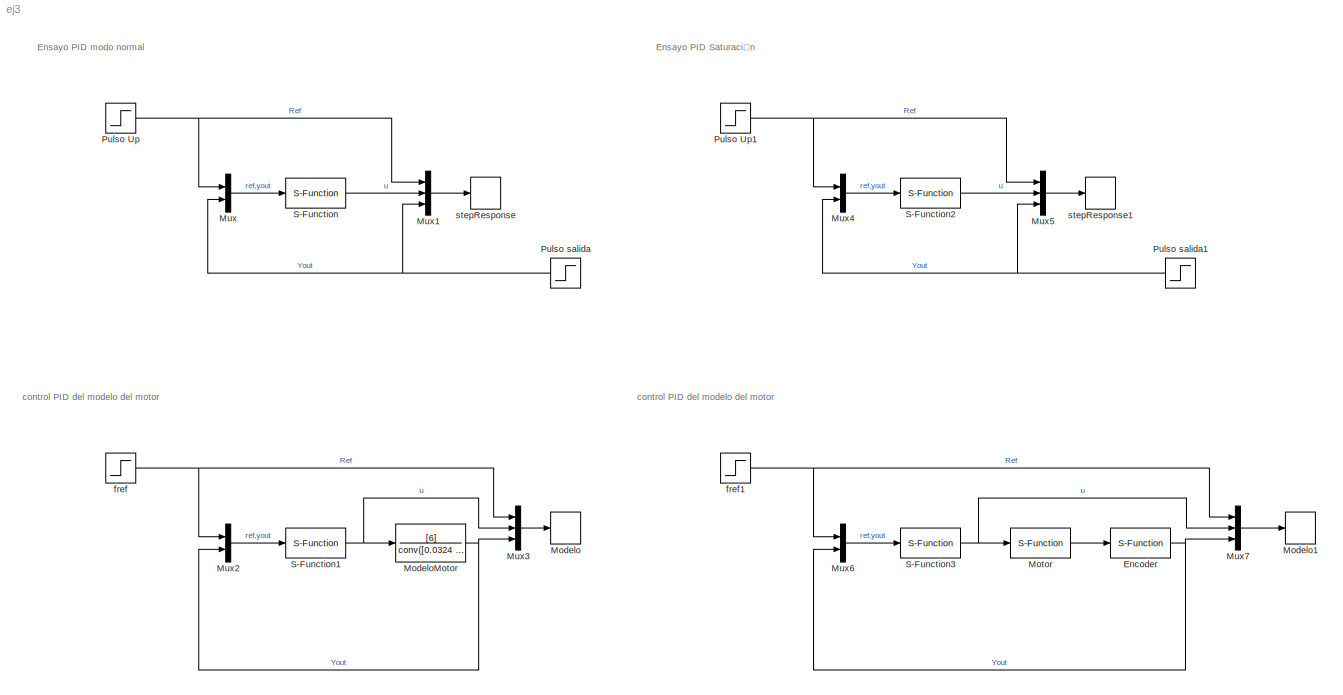
MODEL ej3
KIND model
BLOCK [S-Function] Encoder
  FunctionName = encoder
  Parameters = 1E-5 10
  Ports = [1, 1]
  SID = 36
BLOCK [TimeScope] Modelo
  NumInputPorts = 1
  Ports = [1]
  SID = 20
  ScopeSpecificationString = Simulink.scopes.TimeScopeBlockCfg('CurrentConfiguration', extmgr.ConfigurationSet(extmgr.Configuration('Core','General UI',true,'FigureColor',[0.941176470588235 0.941176470588235 0.941176470588235]),extmgr.Configuration('Core','Source UI',true),extmgr.Configuration('Sources','WiredSimulink',true,'DataLoggingLimitDataPoints',true,'DataLoggingVariableName','ScopeData1','DataLoggingDecimation','1','D...<+3394ch>
BLOCK [TimeScope] Modelo1
  NumInputPorts = 1
  Ports = [1]
  SID = 28
  ScopeSpecificationString = Simulink.scopes.TimeScopeBlockCfg('CurrentConfiguration', extmgr.ConfigurationSet(extmgr.Configuration('Core','General UI',true,'FigureColor',[0.941176470588235 0.941176470588235 0.941176470588235]),extmgr.Configuration('Core','Source UI',true),extmgr.Configuration('Sources','WiredSimulink',true,'DataLoggingVariableName','ScopeData3','DataLoggingDecimation','1','DataLoggingDecimateData',true,'Data...<+3368ch>
BLOCK [TransferFcn] ModeloMotor
  Denominator = conv([0.0324 1],[0.0036 1])
  Numerator = [6]
  SID = 18
BLOCK [S-Function] Motor
  FunctionName = dcmotor_qenc
  Parameters = 10
  Ports = [1, 1]
  SID = 35
BLOCK [Mux] Mux
  DisplayOption = bar
  Inputs = 2
  Ports = [2, 1]
  SID = 1
BLOCK [Mux] Mux1
  DisplayOption = bar
  Inputs = 3
  Ports = [3, 1]
  SID = 2
BLOCK [Mux] Mux2
  DisplayOption = bar
  Inputs = 2
  Ports = [2, 1]
  SID = 11
BLOCK [Mux] Mux3
  DisplayOption = bar
  Inputs = 3
  Ports = [3, 1]
  SID = 12
BLOCK [Mux] Mux4
  DisplayOption = bar
  Inputs = 2
  Ports = [2, 1]
  SID = 21
BLOCK [Mux] Mux5
  DisplayOption = bar
  Inputs = 3
  Ports = [3, 1]
  SID = 22
BLOCK [Mux] Mux6
  DisplayOption = bar
  Inputs = 2
  Ports = [2, 1]
  SID = 30
BLOCK [Mux] Mux7
  DisplayOption = bar
  Inputs = 3
  Ports = [3, 1]
  SID = 31
BLOCK [Step] Pulso Up
  SID = 6
  SampleTime = 0
BLOCK [Step] Pulso Up1
  SID = 23
  SampleTime = 0
BLOCK [Step] Pulso salida
  SID = 7
  SampleTime = 0
  Time = 2
BLOCK [Step] Pulso salida1
  SID = 24
  SampleTime = 0
  Time = 2
BLOCK [S-Function] S-Function
  FunctionName = myPID
  Parameters = 1 0.1 1 1 1E-3
  Ports = [1, 1]
  SID = 3
BLOCK [S-Function] S-Function1
  FunctionName = myPID
  Parameters = 1 0.01 10 10 1E-3 0 24
  Ports = [1, 1]
  SID = 15
BLOCK [S-Function] S-Function2
  FunctionName = myPID
  Parameters = 1 0.1 1 1 1E-3 -10 1.5
  Ports = [1, 1]
  SID = 25
BLOCK [S-Function] S-Function3
  FunctionName = myPID
  Parameters = 1 0.01 10 10 1E-3 0 24
  Ports = [1, 1]
  SID = 32
BLOCK [Step] fref
  After = 45
  SID = 13
  SampleTime = 0
BLOCK [Step] fref1
  After = 45
  SID = 33
  SampleTime = 0
BLOCK [TimeScope] stepResponse
  NumInputPorts = 1
  Ports = [1]
  SID = 10
  ScopeSpecificationString = Simulink.scopes.TimeScopeBlockCfg('CurrentConfiguration', extmgr.ConfigurationSet(extmgr.Configuration('Core','General UI',true,'FigureColor',[0.941176470588235 0.941176470588235 0.941176470588235]),extmgr.Configuration('Core','Source UI',true),extmgr.Configuration('Sources','WiredSimulink',true,'DataLoggingLimitDataPoints',true,'DataLoggingDecimation','1','DataLoggingDecimateData',true,'DataLoggi...<+2158ch>
BLOCK [TimeScope] stepResponse1
  NumInputPorts = 1
  Ports = [1]
  SID = 26
  ScopeSpecificationString = Simulink.scopes.TimeScopeBlockCfg('CurrentConfiguration', extmgr.ConfigurationSet(extmgr.Configuration('Core','General UI',true,'FigureColor',[0.941176470588235 0.941176470588235 0.941176470588235]),extmgr.Configuration('Core','Source UI',true),extmgr.Configuration('Sources','WiredSimulink',true,'DataLoggingDecimation','1','DataLoggingDecimateData',true,'DataLoggingSaveFormat','StructureWithTime',...<+2163ch>
ANNOTATION (root): Ensayo PID Saturación
ANNOTATION (root): Ensayo PID modo normal
ANNOTATION (root): control PID del modelo del motor
NET Encoder:1 -> Mux6:2, Mux7:3
NET ModeloMotor:1 -> Mux2:2, Mux3:3
LINE Motor:1 -> Encoder:1
LINE Mux1:1 -> stepResponse:1
LINE Mux2:1 -> S-Function1:1
LINE Mux3:1 -> Modelo:1
LINE Mux4:1 -> S-Function2:1
LINE Mux5:1 -> stepResponse1:1
LINE Mux6:1 -> S-Function3:1
LINE Mux7:1 -> Modelo1:1
LINE Mux:1 -> S-Function:1
NET Pulso Up1:1 -> Mux4:1, Mux5:1
NET Pulso Up:1 -> Mux1:1, Mux:1
NET Pulso salida1:1 -> Mux4:2, Mux5:3
NET Pulso salida:1 -> Mux1:3, Mux:2
NET S-Function1:1 -> ModeloMotor:1, Mux3:2
LINE S-Function2:1 -> Mux5:2
NET S-Function3:1 -> Motor:1, Mux7:2
LINE S-Function:1 -> Mux1:2
NET fref1:1 -> Mux6:1, Mux7:1
NET fref:1 -> Mux2:1, Mux3:1
note: NET lines group one-source signal fan-out (src -> all destinations, sorted); 1:1 wires keep LINE
